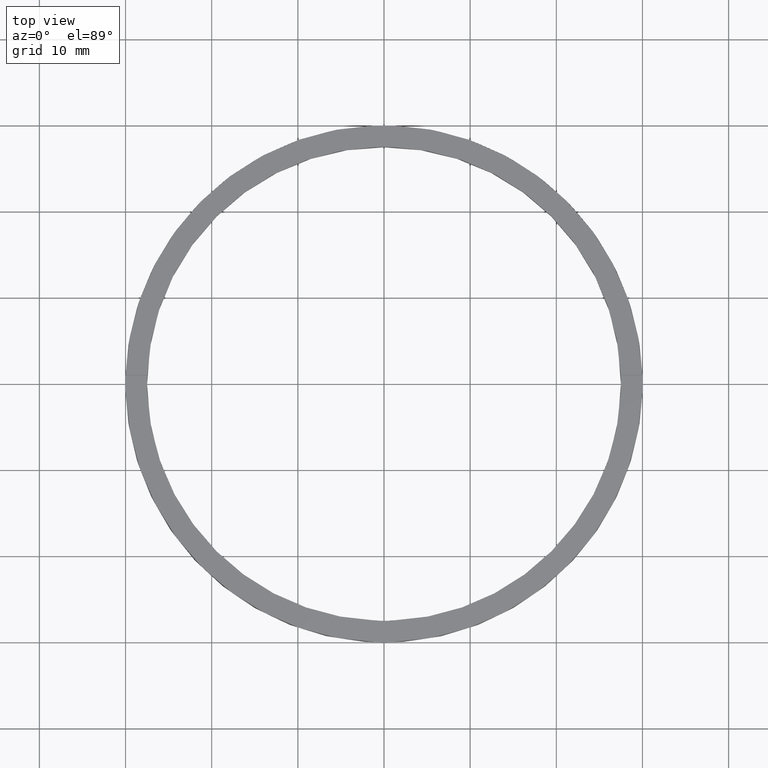
[diagram: clean part render]
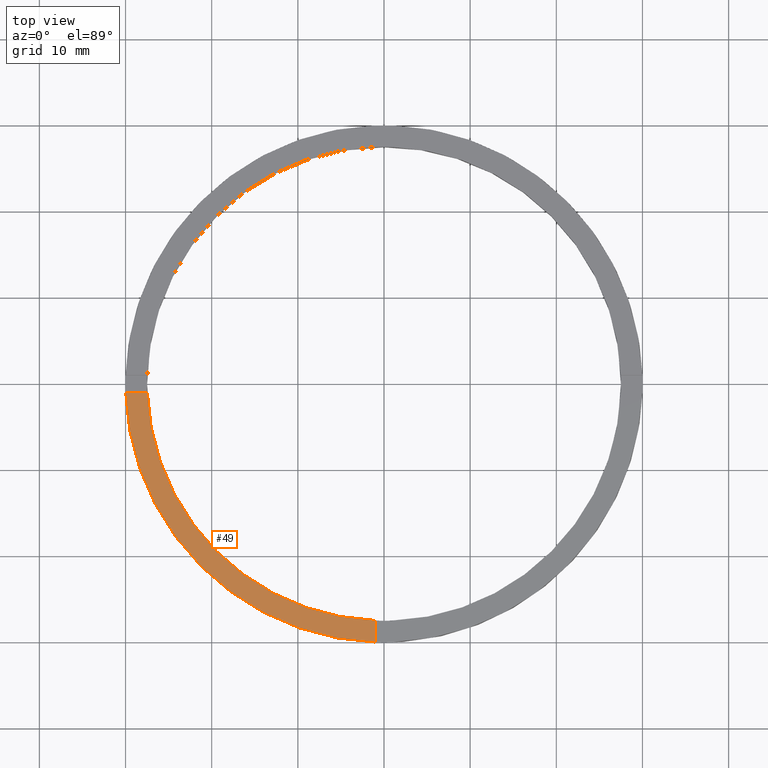
[diagram: same view with one face highlighted and labeled with its STEP entity id]
A machine part, top view. The second image highlights one B-rep face of the part: STEP entity #49.
In plain terms, the highlighted planar face has unit normal (0, 0, 1).
Its self-contained STEP definition (entity closure, byte-faithful):
#14 = LINE ( 'NONE', #267, #279 ) ;
#34 = CIRCLE ( 'NONE', #760, 27.50000000000000000 ) ;
#48 = EDGE_CURVE ( 'NONE', #763, #777, #471, .T. ) ;
#49 = ADVANCED_FACE ( 'NONE', ( #278 ), #587, .T. ) ;
#54 = AXIS2_PLACEMENT_3D ( 'NONE', #368, #648, #729 ) ;
#127 = EDGE_CURVE ( 'NONE', #395, #777, #14, .T. ) ;
#133 = DIRECTION ( 'NONE',  ( 1.301042606982605074E-16, -1.000000000000000000, 0.000000000000000000 ) ) ;
#142 = DIRECTION ( 'NONE',  ( 1.000000000000000000, 0.000000000000000000, 0.000000000000000000 ) ) ;
#186 = ORIENTED_EDGE ( 'NONE', *, *, #197, .F. ) ;
#197 = EDGE_CURVE ( 'NONE', #674, #395, #34, .T. ) ;
#223 = CARTESIAN_POINT ( 'NONE',  ( -20.00000000000018119, -1.000000000000026201, 3.000000000000000000 ) ) ;
#235 = EDGE_CURVE ( 'NONE', #763, #674, #291, .T. ) ;
#237 = ORIENTED_EDGE ( 'NONE', *, *, #48, .T. ) ;
#267 = CARTESIAN_POINT ( 'NONE',  ( -1.000000000000160316, -20.00000000000017764, 3.000000000000000000 ) ) ;
#278 = FACE_OUTER_BOUND ( 'NONE', #752, .T. ) ;
#279 = VECTOR ( 'NONE', #133, 1000.000000000000000 ) ;
#291 = LINE ( 'NONE', #223, #545 ) ;
#305 = DIRECTION ( 'NONE',  ( 0.000000000000000000, 0.000000000000000000, 1.000000000000000000 ) ) ;
#316 = DIRECTION ( 'NONE',  ( 0.000000000000000000, 0.000000000000000000, 1.000000000000000000 ) ) ;
#317 = CARTESIAN_POINT ( 'NONE',  ( -1.000000000000158984, -29.98332870112989212, 3.000000000000000000 ) ) ;
#368 = CARTESIAN_POINT ( 'NONE',  ( 0.000000000000000000, 0.000000000000000000, 3.000000000000000000 ) ) ;
#393 = ORIENTED_EDGE ( 'NONE', *, *, #127, .F. ) ;
#395 = VERTEX_POINT ( 'NONE', #546 ) ;
#471 = CIRCLE ( 'NONE', #675, 30.00000000000000000 ) ;
#485 = CARTESIAN_POINT ( 'NONE',  ( 0.000000000000000000, 0.000000000000000000, 3.000000000000000000 ) ) ;
#515 = ORIENTED_EDGE ( 'NONE', *, *, #235, .F. ) ;
#525 = CARTESIAN_POINT ( 'NONE',  ( -29.98332870112989568, -1.000000000000028200, 3.000000000000000000 ) ) ;
#531 = DIRECTION ( 'NONE',  ( 1.000000000000000000, 0.000000000000000000, 0.000000000000000000 ) ) ;
#545 = VECTOR ( 'NONE', #759, 1000.000000000000000 ) ;
#546 = CARTESIAN_POINT ( 'NONE',  ( -1.000000000000159428, -27.48181216732258392, 3.000000000000000000 ) ) ;
#587 = PLANE ( 'NONE',  #54 ) ;
#616 = CARTESIAN_POINT ( 'NONE',  ( 0.000000000000000000, 0.000000000000000000, 3.000000000000000000 ) ) ;
#622 = CARTESIAN_POINT ( 'NONE',  ( -27.48181216732259102, -1.000000000000027756, 3.000000000000000000 ) ) ;
#648 = DIRECTION ( 'NONE',  ( 0.000000000000000000, 0.000000000000000000, 1.000000000000000000 ) ) ;
#674 = VERTEX_POINT ( 'NONE', #622 ) ;
#675 = AXIS2_PLACEMENT_3D ( 'NONE', #485, #305, #531 ) ;
#729 = DIRECTION ( 'NONE',  ( 1.000000000000000000, 0.000000000000000000, -0.000000000000000000 ) ) ;
#752 = EDGE_LOOP ( 'NONE', ( #393, #186, #515, #237 ) ) ;
#759 = DIRECTION ( 'NONE',  ( 1.000000000000000000, 1.951563910473907735E-16, -0.000000000000000000 ) ) ;
#760 = AXIS2_PLACEMENT_3D ( 'NONE', #616, #316, #142 ) ;
#763 = VERTEX_POINT ( 'NONE', #525 ) ;
#777 = VERTEX_POINT ( 'NONE', #317 ) ;